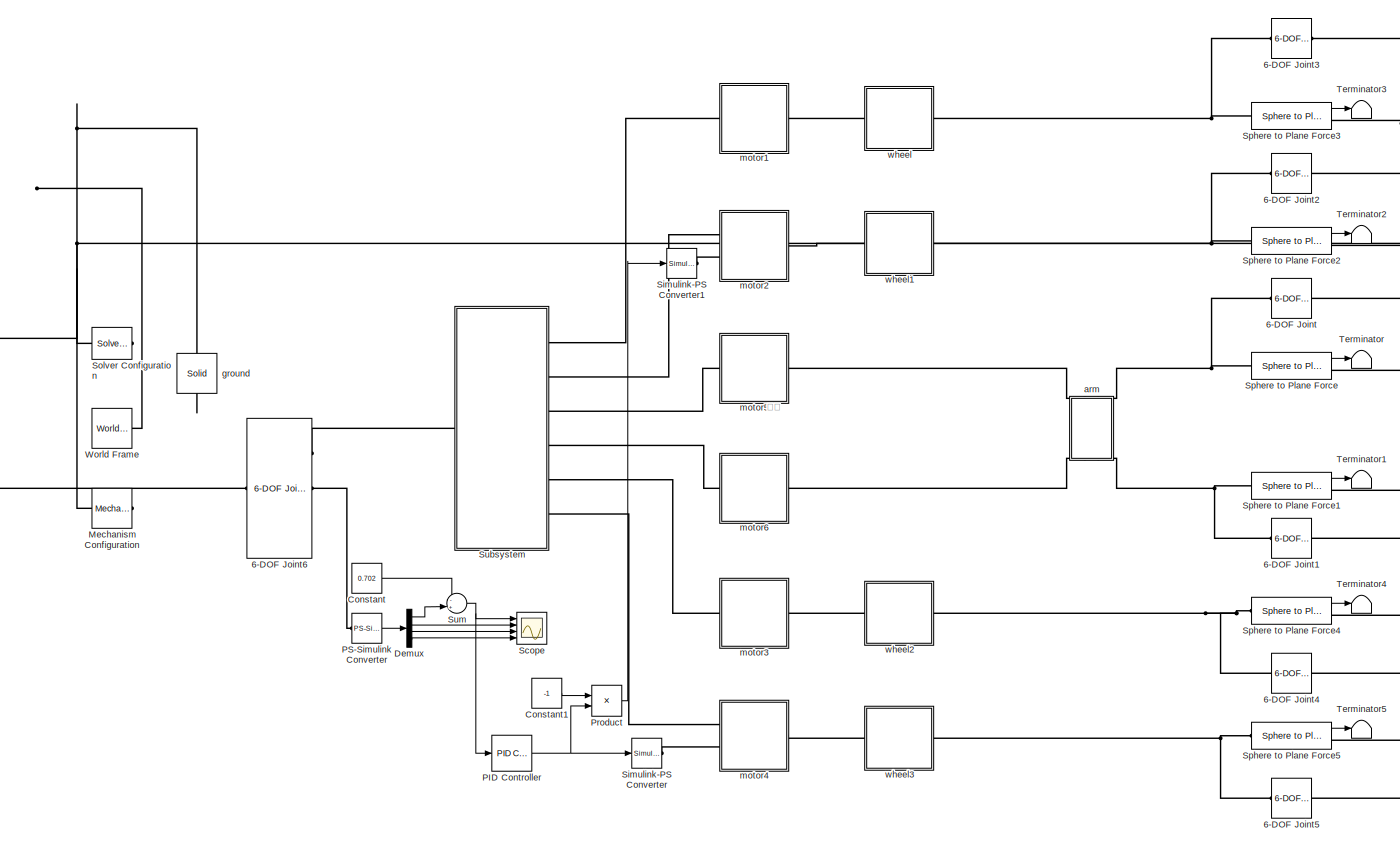
[diagram: root canvas - part 1/1, right side, full height]
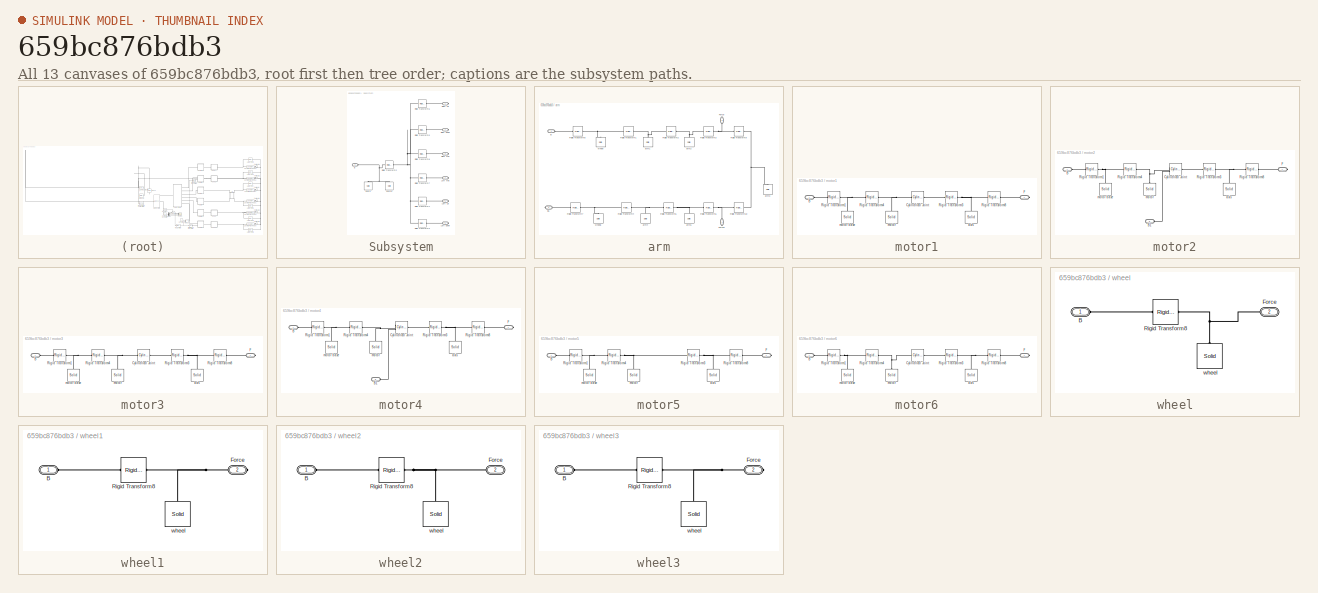
[diagram: thumbnail index - all 13 canvases of the model, root first then tree order]
MODEL slx_659bc876bdb3
KIND model
CONFIG AbsTol = 1e-5
CONFIG EnableMultiTasking = off
CONFIG FixedStep = auto
CONFIG MaxStep = 1e-2
CONFIG MinStep = auto
CONFIG RelTol = 1e-4
CONFIG SampleTimeConstraint = Unconstrained
CONFIG Solver = ode15s
CONFIG SolverName = ode15s
CONFIG StartTime = 0.0
CONFIG StopTime = 3
BLOCK [Reference] 6-DOF Joint  REF=sm_lib/Joints/6-DOF Joint
  Ports = [0, 0, 0, 0, 0, 1, 1]
  SourceBlock = sm_lib/Joints/6-DOF Joint
  SourceType = 6-DOF Joint
BLOCK [Reference] 6-DOF Joint1  REF=sm_lib/Joints/6-DOF Joint
  Ports = [0, 0, 0, 0, 0, 1, 1]
  SourceBlock = sm_lib/Joints/6-DOF Joint
  SourceType = 6-DOF Joint
BLOCK [Reference] 6-DOF Joint2  REF=sm_lib/Joints/6-DOF Joint
  Ports = [0, 0, 0, 0, 0, 1, 1]
  SourceBlock = sm_lib/Joints/6-DOF Joint
  SourceType = 6-DOF Joint
BLOCK [Reference] 6-DOF Joint3  REF=sm_lib/Joints/6-DOF Joint
  Ports = [0, 0, 0, 0, 0, 1, 1]
  SourceBlock = sm_lib/Joints/6-DOF Joint
  SourceType = 6-DOF Joint
BLOCK [Reference] 6-DOF Joint4  REF=sm_lib/Joints/6-DOF Joint
  Ports = [0, 0, 0, 0, 0, 1, 1]
  SourceBlock = sm_lib/Joints/6-DOF Joint
  SourceType = 6-DOF Joint
BLOCK [Reference] 6-DOF Joint5  REF=sm_lib/Joints/6-DOF Joint
  Ports = [0, 0, 0, 0, 0, 1, 1]
  SourceBlock = sm_lib/Joints/6-DOF Joint
  SourceType = 6-DOF Joint
BLOCK [Reference] 6-DOF Joint6  REF=sm_lib/Joints/6-DOF Joint
  Ports = [0, 0, 0, 0, 0, 1, 3]
  SourceBlock = sm_lib/Joints/6-DOF Joint
  SourceType = 6-DOF Joint
BLOCK [Constant] Constant
  Value = 0.702
BLOCK [Constant] Constant1
  Value = -1
BLOCK [Demux] Demux
  DisplayOption = bar
  Ports = [1, 4]
BLOCK [Reference] Mechanism Configuration  REF=sm_lib/Utilities/Mechanism
Configuration
  Ports = [0, 0, 0, 0, 0, 0, 1]
  SourceBlock = sm_lib/Utilities/Mechanism\nConfiguration
  SourceType = Mechanism\nConfiguration
BLOCK [Reference] PID Controller  REF=simulink/Continuous/PID Controller
  Ports = [1, 1]
  SourceBlock = simulink/Continuous/PID Controller
  SourceType = PID 1dof
BLOCK [Reference] PS-Simulink Converter  REF=nesl_utility/PS-Simulink
Converter
  Ports = [0, 1, 0, 0, 0, 1]
  SourceBlock = nesl_utility/PS-Simulink\nConverter
  SourceType = PS-Simulink\nConverter
BLOCK [Product] Product
  InputSameDT = off
  OutDataTypeStr = Inherit: Inherit via internal rule
  Ports = [2, 1]
  RndMeth = Floor
  SaturateOnIntegerOverflow = off
BLOCK [Scope] Scope
  NumInputPorts = 4
  Ports = [4]
  ScopeSpecificationString = Simulink.scopes.TimeScopeBlockCfg('CurrentConfiguration', extmgr.ConfigurationSet(extmgr.Configuration('Core','General UI',true),extmgr.Configuration('Core','Source UI',true),extmgr.Configuration('Sources','WiredSimulink',true),extmgr.Configuration('Visuals','Time Domain',true,'SerializedDisplays',{struct('MinYLimReal','-0.1491','MaxYLimReal','0.0577','YLabelReal','','MinYLimMag','0.00000','MaxYLi...<+3393ch>
BLOCK [Reference] Simulink-PS Converter  REF=nesl_utility/Simulink-PS
Converter
  Ports = [1, 0, 0, 0, 0, 0, 1]
  SourceBlock = nesl_utility/Simulink-PS\nConverter
  SourceType = Simulink-PS\nConverter
BLOCK [Reference] Simulink-PS Converter1  REF=nesl_utility/Simulink-PS
Converter
  Ports = [1, 0, 0, 0, 0, 0, 1]
  SourceBlock = nesl_utility/Simulink-PS\nConverter
  SourceType = Simulink-PS\nConverter
BLOCK [Reference] Solver Configuration  REF=nesl_utility/Solver
Configuration
  Ports = [0, 0, 0, 0, 0, 0, 1]
  SourceBlock = nesl_utility/Solver\nConfiguration
  SourceType = Solver\nConfiguration
BLOCK [Reference] Sphere to Plane Force  REF=Contact_Forces_Lib/3D/Sphere to Plane Force
  Ports = [0, 1, 0, 0, 0, 1, 1]
  SourceBlock = Contact_Forces_Lib/3D/Sphere to Plane Force
  SourceType = Sphere to Plane Force
BLOCK [Reference] Sphere to Plane Force1  REF=Contact_Forces_Lib/3D/Sphere to Plane Force
  Ports = [0, 1, 0, 0, 0, 1, 1]
  SourceBlock = Contact_Forces_Lib/3D/Sphere to Plane Force
  SourceType = Sphere to Plane Force
BLOCK [Reference] Sphere to Plane Force2  REF=Contact_Forces_Lib/3D/Sphere to Plane Force
  Ports = [0, 1, 0, 0, 0, 1, 1]
  SourceBlock = Contact_Forces_Lib/3D/Sphere to Plane Force
  SourceType = Sphere to Plane Force
BLOCK [Reference] Sphere to Plane Force3  REF=Contact_Forces_Lib/3D/Sphere to Plane Force
  Ports = [0, 1, 0, 0, 0, 1, 1]
  SourceBlock = Contact_Forces_Lib/3D/Sphere to Plane Force
  SourceType = Sphere to Plane Force
BLOCK [Reference] Sphere to Plane Force4  REF=Contact_Forces_Lib/3D/Sphere to Plane Force
  Ports = [0, 1, 0, 0, 0, 1, 1]
  SourceBlock = Contact_Forces_Lib/3D/Sphere to Plane Force
  SourceType = Sphere to Plane Force
BLOCK [Reference] Sphere to Plane Force5  REF=Contact_Forces_Lib/3D/Sphere to Plane Force
  Ports = [0, 1, 0, 0, 0, 1, 1]
  SourceBlock = Contact_Forces_Lib/3D/Sphere to Plane Force
  SourceType = Sphere to Plane Force
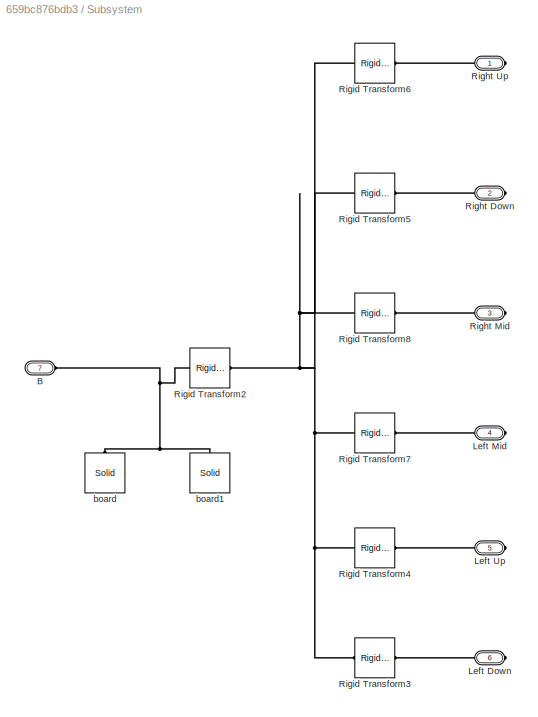
BLOCK [SubSystem] Subsystem
  Ports = [0, 0, 0, 0, 0, 1, 6]
  RequestExecContextInheritance = off
  Variant = off
BLOCK [PMIOPort] Subsystem/B
  Port = 7
  Side = Left
BLOCK [PMIOPort] Subsystem/Left Down
  Port = 6
  Side = Right
BLOCK [PMIOPort] Subsystem/Left Mid
  Port = 4
  Side = Right
BLOCK [PMIOPort] Subsystem/Left Up
  Port = 5
  Side = Right
BLOCK [PMIOPort] Subsystem/Right Down
  Port = 2
  Side = Right
BLOCK [PMIOPort] Subsystem/Right Mid
  Port = 3
  Side = Right
BLOCK [PMIOPort] Subsystem/Right Up
  Port = 1
  Side = Right
BLOCK [Reference] Subsystem/Rigid Transform2  REF=sm_lib/Frames and
Transforms/Rigid
Transform
  Ports = [0, 0, 0, 0, 0, 1, 1]
  SourceBlock = sm_lib/Frames and\nTransforms/Rigid\nTransform
  SourceType = Rigid\nTransform
BLOCK [Reference] Subsystem/Rigid Transform3  REF=sm_lib/Frames and
Transforms/Rigid
Transform
  Ports = [0, 0, 0, 0, 0, 1, 1]
  SourceBlock = sm_lib/Frames and\nTransforms/Rigid\nTransform
  SourceType = Rigid\nTransform
BLOCK [Reference] Subsystem/Rigid Transform4  REF=sm_lib/Frames and
Transforms/Rigid
Transform
  Ports = [0, 0, 0, 0, 0, 1, 1]
  SourceBlock = sm_lib/Frames and\nTransforms/Rigid\nTransform
  SourceType = Rigid\nTransform
BLOCK [Reference] Subsystem/Rigid Transform5  REF=sm_lib/Frames and
Transforms/Rigid
Transform
  Ports = [0, 0, 0, 0, 0, 1, 1]
  SourceBlock = sm_lib/Frames and\nTransforms/Rigid\nTransform
  SourceType = Rigid\nTransform
BLOCK [Reference] Subsystem/Rigid Transform6  REF=sm_lib/Frames and
Transforms/Rigid
Transform
  Ports = [0, 0, 0, 0, 0, 1, 1]
  SourceBlock = sm_lib/Frames and\nTransforms/Rigid\nTransform
  SourceType = Rigid\nTransform
BLOCK [Reference] Subsystem/Rigid Transform7  REF=sm_lib/Frames and
Transforms/Rigid
Transform
  Ports = [0, 0, 0, 0, 0, 1, 1]
  SourceBlock = sm_lib/Frames and\nTransforms/Rigid\nTransform
  SourceType = Rigid\nTransform
BLOCK [Reference] Subsystem/Rigid Transform8  REF=sm_lib/Frames and
Transforms/Rigid
Transform
  Ports = [0, 0, 0, 0, 0, 1, 1]
  SourceBlock = sm_lib/Frames and\nTransforms/Rigid\nTransform
  SourceType = Rigid\nTransform
BLOCK [Reference] Subsystem/board  REF=sm_lib/Body Elements/Solid
  Ports = [0, 0, 0, 0, 0, 0, 1]
  SourceBlock = sm_lib/Body Elements/Solid
  SourceType = Solid
BLOCK [Reference] Subsystem/board1  REF=sm_lib/Body Elements/Solid
  Ports = [0, 0, 0, 0, 0, 0, 1]
  SourceBlock = sm_lib/Body Elements/Solid
  SourceType = Solid
BLOCK [Sum] Sum
  IconShape = round
  InputSameDT = off
  Inputs = -+|
  OutDataTypeStr = Inherit: Inherit via internal rule
  Ports = [2, 1]
  SaturateOnIntegerOverflow = off
BLOCK [Terminator] Terminator
BLOCK [Terminator] Terminator1
BLOCK [Terminator] Terminator2
BLOCK [Terminator] Terminator3
BLOCK [Terminator] Terminator4
BLOCK [Terminator] Terminator5
BLOCK [Reference] World Frame  REF=sm_lib/Frames and
Transforms/World Frame
  Ports = [0, 0, 0, 0, 0, 0, 1]
  SourceBlock = sm_lib/Frames and\nTransforms/World Frame
  SourceType = World Frame
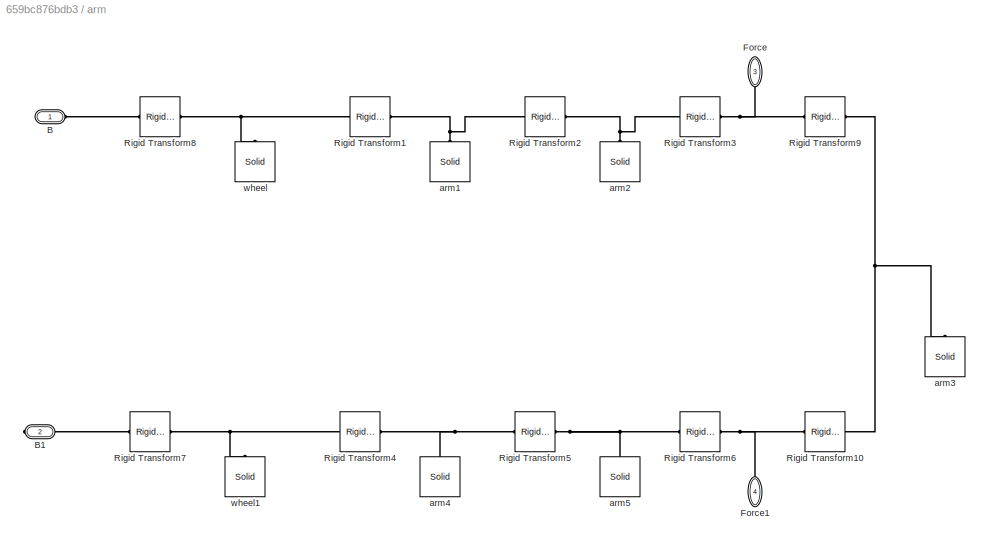
BLOCK [SubSystem] arm
  Ports = [0, 0, 0, 0, 0, 2, 2]
  RequestExecContextInheritance = off
  Variant = off
BLOCK [PMIOPort] arm/B
  Port = 1
  Side = Left
BLOCK [PMIOPort] arm/B1
  Port = 2
  Side = Right
BLOCK [PMIOPort] arm/Force
  Port = 3
  Side = Left
BLOCK [PMIOPort] arm/Force1
  Port = 4
  Side = Right
BLOCK [Reference] arm/Rigid Transform1  REF=sm_lib/Frames and
Transforms/Rigid
Transform
  Ports = [0, 0, 0, 0, 0, 1, 1]
  SourceBlock = sm_lib/Frames and\nTransforms/Rigid\nTransform
  SourceType = Rigid\nTransform
BLOCK [Reference] arm/Rigid Transform10  REF=sm_lib/Frames and
Transforms/Rigid
Transform
  Ports = [0, 0, 0, 0, 0, 1, 1]
  SourceBlock = sm_lib/Frames and\nTransforms/Rigid\nTransform
  SourceType = Rigid\nTransform
BLOCK [Reference] arm/Rigid Transform2  REF=sm_lib/Frames and
Transforms/Rigid
Transform
  Ports = [0, 0, 0, 0, 0, 1, 1]
  SourceBlock = sm_lib/Frames and\nTransforms/Rigid\nTransform
  SourceType = Rigid\nTransform
BLOCK [Reference] arm/Rigid Transform3  REF=sm_lib/Frames and
Transforms/Rigid
Transform
  Ports = [0, 0, 0, 0, 0, 1, 1]
  SourceBlock = sm_lib/Frames and\nTransforms/Rigid\nTransform
  SourceType = Rigid\nTransform
BLOCK [Reference] arm/Rigid Transform4  REF=sm_lib/Frames and
Transforms/Rigid
Transform
  Ports = [0, 0, 0, 0, 0, 1, 1]
  SourceBlock = sm_lib/Frames and\nTransforms/Rigid\nTransform
  SourceType = Rigid\nTransform
BLOCK [Reference] arm/Rigid Transform5  REF=sm_lib/Frames and
Transforms/Rigid
Transform
  Ports = [0, 0, 0, 0, 0, 1, 1]
  SourceBlock = sm_lib/Frames and\nTransforms/Rigid\nTransform
  SourceType = Rigid\nTransform
BLOCK [Reference] arm/Rigid Transform6  REF=sm_lib/Frames and
Transforms/Rigid
Transform
  Ports = [0, 0, 0, 0, 0, 1, 1]
  SourceBlock = sm_lib/Frames and\nTransforms/Rigid\nTransform
  SourceType = Rigid\nTransform
BLOCK [Reference] arm/Rigid Transform7  REF=sm_lib/Frames and
Transforms/Rigid
Transform
  Ports = [0, 0, 0, 0, 0, 1, 1]
  SourceBlock = sm_lib/Frames and\nTransforms/Rigid\nTransform
  SourceType = Rigid\nTransform
BLOCK [Reference] arm/Rigid Transform8  REF=sm_lib/Frames and
Transforms/Rigid
Transform
  Ports = [0, 0, 0, 0, 0, 1, 1]
  SourceBlock = sm_lib/Frames and\nTransforms/Rigid\nTransform
  SourceType = Rigid\nTransform
BLOCK [Reference] arm/Rigid Transform9  REF=sm_lib/Frames and
Transforms/Rigid
Transform
  Ports = [0, 0, 0, 0, 0, 1, 1]
  SourceBlock = sm_lib/Frames and\nTransforms/Rigid\nTransform
  SourceType = Rigid\nTransform
BLOCK [Reference] arm/arm1  REF=sm_lib/Body Elements/Solid
  Ports = [0, 0, 0, 0, 0, 0, 1]
  SourceBlock = sm_lib/Body Elements/Solid
  SourceType = Solid
BLOCK [Reference] arm/arm2  REF=sm_lib/Body Elements/Solid
  Ports = [0, 0, 0, 0, 0, 0, 1]
  SourceBlock = sm_lib/Body Elements/Solid
  SourceType = Solid
BLOCK [Reference] arm/arm3  REF=sm_lib/Body Elements/Solid
  Ports = [0, 0, 0, 0, 0, 0, 1]
  SourceBlock = sm_lib/Body Elements/Solid
  SourceType = Solid
BLOCK [Reference] arm/arm4  REF=sm_lib/Body Elements/Solid
  Ports = [0, 0, 0, 0, 0, 0, 1]
  SourceBlock = sm_lib/Body Elements/Solid
  SourceType = Solid
BLOCK [Reference] arm/arm5  REF=sm_lib/Body Elements/Solid
  Ports = [0, 0, 0, 0, 0, 0, 1]
  SourceBlock = sm_lib/Body Elements/Solid
  SourceType = Solid
BLOCK [Reference] arm/wheel  REF=sm_lib/Body Elements/Solid
  Ports = [0, 0, 0, 0, 0, 0, 1]
  SourceBlock = sm_lib/Body Elements/Solid
  SourceType = Solid
BLOCK [Reference] arm/wheel1  REF=sm_lib/Body Elements/Solid
  Ports = [0, 0, 0, 0, 0, 0, 1]
  SourceBlock = sm_lib/Body Elements/Solid
  SourceType = Solid
BLOCK [Reference] ground  REF=sm_lib/Body Elements/Solid
  Ports = [0, 0, 0, 0, 0, 0, 1]
  SourceBlock = sm_lib/Body Elements/Solid
  SourceType = Solid
BLOCK [SubSystem] motor1
  Ports = [0, 0, 0, 0, 0, 1, 1]
  RequestExecContextInheritance = off
  Variant = off
  VariantControl = Variant1
BLOCK [PMIOPort] motor1/B
  Port = 1
  Side = Left
BLOCK [Reference] motor1/Cylindrical Joint  REF=sm_lib/Joints/Cylindrical
Joint
  Ports = [0, 0, 0, 0, 0, 1, 1]
  SourceBlock = sm_lib/Joints/Cylindrical\nJoint
  SourceType = Cylindrical\nJoint
BLOCK [PMIOPort] motor1/F
  Port = 2
  Side = Right
BLOCK [Reference] motor1/Rigid Transform1  REF=sm_lib/Frames and
Transforms/Rigid
Transform
  Ports = [0, 0, 0, 0, 0, 1, 1]
  SourceBlock = sm_lib/Frames and\nTransforms/Rigid\nTransform
  SourceType = Rigid\nTransform
BLOCK [Reference] motor1/Rigid Transform3  REF=sm_lib/Frames and
Transforms/Rigid
Transform
  Ports = [0, 0, 0, 0, 0, 1, 1]
  SourceBlock = sm_lib/Frames and\nTransforms/Rigid\nTransform
  SourceType = Rigid\nTransform
BLOCK [Reference] motor1/Rigid Transform4  REF=sm_lib/Frames and
Transforms/Rigid
Transform
  Ports = [0, 0, 0, 0, 0, 1, 1]
  SourceBlock = sm_lib/Frames and\nTransforms/Rigid\nTransform
  SourceType = Rigid\nTransform
BLOCK [Reference] motor1/Rigid Transform8  REF=sm_lib/Frames and
Transforms/Rigid
Transform
  Ports = [0, 0, 0, 0, 0, 1, 1]
  SourceBlock = sm_lib/Frames and\nTransforms/Rigid\nTransform
  SourceType = Rigid\nTransform
BLOCK [Reference] motor1/axis  REF=sm_lib/Body Elements/Solid
  Ports = [0, 0, 0, 0, 0, 0, 1]
  SourceBlock = sm_lib/Body Elements/Solid
  SourceType = Solid
BLOCK [Reference] motor1/motor  REF=sm_lib/Body Elements/Solid
  Ports = [0, 0, 0, 0, 0, 0, 1]
  SourceBlock = sm_lib/Body Elements/Solid
  SourceType = Solid
BLOCK [Reference] motor1/motor base  REF=sm_lib/Body Elements/Solid
  Ports = [0, 0, 0, 0, 0, 0, 1]
  SourceBlock = sm_lib/Body Elements/Solid
  SourceType = Solid
BLOCK [SubSystem] motor2
  Ports = [0, 0, 0, 0, 0, 2, 1]
  RequestExecContextInheritance = off
  Variant = off
  VariantControl = Variant1
BLOCK [PMIOPort] motor2/B
  Port = 1
  Side = Left
BLOCK [PMIOPort] motor2/B1
  Port = 3
  Side = Left
BLOCK [Reference] motor2/Cylindrical Joint  REF=sm_lib/Joints/Cylindrical
Joint
  Ports = [0, 0, 0, 0, 0, 2, 1]
  SourceBlock = sm_lib/Joints/Cylindrical\nJoint
  SourceType = Cylindrical\nJoint
BLOCK [PMIOPort] motor2/F
  Port = 2
  Side = Right
BLOCK [Reference] motor2/Rigid Transform1  REF=sm_lib/Frames and
Transforms/Rigid
Transform
  Ports = [0, 0, 0, 0, 0, 1, 1]
  SourceBlock = sm_lib/Frames and\nTransforms/Rigid\nTransform
  SourceType = Rigid\nTransform
BLOCK [Reference] motor2/Rigid Transform3  REF=sm_lib/Frames and
Transforms/Rigid
Transform
  Ports = [0, 0, 0, 0, 0, 1, 1]
  SourceBlock = sm_lib/Frames and\nTransforms/Rigid\nTransform
  SourceType = Rigid\nTransform
BLOCK [Reference] motor2/Rigid Transform4  REF=sm_lib/Frames and
Transforms/Rigid
Transform
  Ports = [0, 0, 0, 0, 0, 1, 1]
  SourceBlock = sm_lib/Frames and\nTransforms/Rigid\nTransform
  SourceType = Rigid\nTransform
BLOCK [Reference] motor2/Rigid Transform8  REF=sm_lib/Frames and
Transforms/Rigid
Transform
  Ports = [0, 0, 0, 0, 0, 1, 1]
  SourceBlock = sm_lib/Frames and\nTransforms/Rigid\nTransform
  SourceType = Rigid\nTransform
BLOCK [Reference] motor2/axis  REF=sm_lib/Body Elements/Solid
  Ports = [0, 0, 0, 0, 0, 0, 1]
  SourceBlock = sm_lib/Body Elements/Solid
  SourceType = Solid
BLOCK [Reference] motor2/motor  REF=sm_lib/Body Elements/Solid
  Ports = [0, 0, 0, 0, 0, 0, 1]
  SourceBlock = sm_lib/Body Elements/Solid
  SourceType = Solid
BLOCK [Reference] motor2/motor base  REF=sm_lib/Body Elements/Solid
  Ports = [0, 0, 0, 0, 0, 0, 1]
  SourceBlock = sm_lib/Body Elements/Solid
  SourceType = Solid
BLOCK [SubSystem] motor3
  Ports = [0, 0, 0, 0, 0, 1, 1]
  RequestExecContextInheritance = off
  Variant = off
  VariantControl = Variant1
BLOCK [PMIOPort] motor3/B
  Port = 1
  Side = Left
BLOCK [Reference] motor3/Cylindrical Joint  REF=sm_lib/Joints/Cylindrical
Joint
  Ports = [0, 0, 0, 0, 0, 1, 1]
  SourceBlock = sm_lib/Joints/Cylindrical\nJoint
  SourceType = Cylindrical\nJoint
BLOCK [PMIOPort] motor3/F
  Port = 2
  Side = Right
BLOCK [Reference] motor3/Rigid Transform1  REF=sm_lib/Frames and
Transforms/Rigid
Transform
  Ports = [0, 0, 0, 0, 0, 1, 1]
  SourceBlock = sm_lib/Frames and\nTransforms/Rigid\nTransform
  SourceType = Rigid\nTransform
BLOCK [Reference] motor3/Rigid Transform3  REF=sm_lib/Frames and
Transforms/Rigid
Transform
  Ports = [0, 0, 0, 0, 0, 1, 1]
  SourceBlock = sm_lib/Frames and\nTransforms/Rigid\nTransform
  SourceType = Rigid\nTransform
BLOCK [Reference] motor3/Rigid Transform4  REF=sm_lib/Frames and
Transforms/Rigid
Transform
  Ports = [0, 0, 0, 0, 0, 1, 1]
  SourceBlock = sm_lib/Frames and\nTransforms/Rigid\nTransform
  SourceType = Rigid\nTransform
BLOCK [Reference] motor3/Rigid Transform8  REF=sm_lib/Frames and
Transforms/Rigid
Transform
  Ports = [0, 0, 0, 0, 0, 1, 1]
  SourceBlock = sm_lib/Frames and\nTransforms/Rigid\nTransform
  SourceType = Rigid\nTransform
BLOCK [Reference] motor3/axis  REF=sm_lib/Body Elements/Solid
  Ports = [0, 0, 0, 0, 0, 0, 1]
  SourceBlock = sm_lib/Body Elements/Solid
  SourceType = Solid
BLOCK [Reference] motor3/motor  REF=sm_lib/Body Elements/Solid
  Ports = [0, 0, 0, 0, 0, 0, 1]
  SourceBlock = sm_lib/Body Elements/Solid
  SourceType = Solid
BLOCK [Reference] motor3/motor base  REF=sm_lib/Body Elements/Solid
  Ports = [0, 0, 0, 0, 0, 0, 1]
  SourceBlock = sm_lib/Body Elements/Solid
  SourceType = Solid
BLOCK [SubSystem] motor4
  Ports = [0, 0, 0, 0, 0, 2, 1]
  RequestExecContextInheritance = off
  Variant = off
  VariantControl = Variant1
BLOCK [PMIOPort] motor4/B
  Port = 1
  Side = Left
BLOCK [PMIOPort] motor4/B1
  Port = 3
  Side = Left
BLOCK [Reference] motor4/Cylindrical Joint  REF=sm_lib/Joints/Cylindrical
Joint
  Ports = [0, 0, 0, 0, 0, 2, 1]
  SourceBlock = sm_lib/Joints/Cylindrical\nJoint
  SourceType = Cylindrical\nJoint
BLOCK [PMIOPort] motor4/F
  Port = 2
  Side = Right
BLOCK [Reference] motor4/Rigid Transform1  REF=sm_lib/Frames and
Transforms/Rigid
Transform
  Ports = [0, 0, 0, 0, 0, 1, 1]
  SourceBlock = sm_lib/Frames and\nTransforms/Rigid\nTransform
  SourceType = Rigid\nTransform
BLOCK [Reference] motor4/Rigid Transform3  REF=sm_lib/Frames and
Transforms/Rigid
Transform
  Ports = [0, 0, 0, 0, 0, 1, 1]
  SourceBlock = sm_lib/Frames and\nTransforms/Rigid\nTransform
  SourceType = Rigid\nTransform
BLOCK [Reference] motor4/Rigid Transform4  REF=sm_lib/Frames and
Transforms/Rigid
Transform
  Ports = [0, 0, 0, 0, 0, 1, 1]
  SourceBlock = sm_lib/Frames and\nTransforms/Rigid\nTransform
  SourceType = Rigid\nTransform
BLOCK [Reference] motor4/Rigid Transform8  REF=sm_lib/Frames and
Transforms/Rigid
Transform
  Ports = [0, 0, 0, 0, 0, 1, 1]
  SourceBlock = sm_lib/Frames and\nTransforms/Rigid\nTransform
  SourceType = Rigid\nTransform
BLOCK [Reference] motor4/axis  REF=sm_lib/Body Elements/Solid
  Ports = [0, 0, 0, 0, 0, 0, 1]
  SourceBlock = sm_lib/Body Elements/Solid
  SourceType = Solid
BLOCK [Reference] motor4/motor  REF=sm_lib/Body Elements/Solid
  Ports = [0, 0, 0, 0, 0, 0, 1]
  SourceBlock = sm_lib/Body Elements/Solid
  SourceType = Solid
BLOCK [Reference] motor4/motor base  REF=sm_lib/Body Elements/Solid
  Ports = [0, 0, 0, 0, 0, 0, 1]
  SourceBlock = sm_lib/Body Elements/Solid
  SourceType = Solid
BLOCK [SubSystem] motor5
  Ports = [0, 0, 0, 0, 0, 1, 1]
  RequestExecContextInheritance = off
  Variant = off
  VariantControl = Variant1
BLOCK [PMIOPort] motor5/B
  Port = 1
  Side = Left
BLOCK [PMIOPort] motor5/F
  Port = 2
  Side = Right
BLOCK [Reference] motor5/Rigid Transform1  REF=sm_lib/Frames and
Transforms/Rigid
Transform
  Ports = [0, 0, 0, 0, 0, 1, 1]
  SourceBlock = sm_lib/Frames and\nTransforms/Rigid\nTransform
  SourceType = Rigid\nTransform
BLOCK [Reference] motor5/Rigid Transform3  REF=sm_lib/Frames and
Transforms/Rigid
Transform
  Ports = [0, 0, 0, 0, 0, 1, 1]
  SourceBlock = sm_lib/Frames and\nTransforms/Rigid\nTransform
  SourceType = Rigid\nTransform
BLOCK [Reference] motor5/Rigid Transform4  REF=sm_lib/Frames and
Transforms/Rigid
Transform
  Ports = [0, 0, 0, 0, 0, 1, 1]
  SourceBlock = sm_lib/Frames and\nTransforms/Rigid\nTransform
  SourceType = Rigid\nTransform
BLOCK [Reference] motor5/Rigid Transform8  REF=sm_lib/Frames and
Transforms/Rigid
Transform
  Ports = [0, 0, 0, 0, 0, 1, 1]
  SourceBlock = sm_lib/Frames and\nTransforms/Rigid\nTransform
  SourceType = Rigid\nTransform
BLOCK [Reference] motor5/axis  REF=sm_lib/Body Elements/Solid
  Ports = [0, 0, 0, 0, 0, 0, 1]
  SourceBlock = sm_lib/Body Elements/Solid
  SourceType = Solid
BLOCK [Reference] motor5/motor  REF=sm_lib/Body Elements/Solid
  Ports = [0, 0, 0, 0, 0, 0, 1]
  SourceBlock = sm_lib/Body Elements/Solid
  SourceType = Solid
BLOCK [Reference] motor5/motor base  REF=sm_lib/Body Elements/Solid
  Ports = [0, 0, 0, 0, 0, 0, 1]
  SourceBlock = sm_lib/Body Elements/Solid
  SourceType = Solid
BLOCK [SubSystem] motor6
  Ports = [0, 0, 0, 0, 0, 1, 1]
  RequestExecContextInheritance = off
  Variant = off
  VariantControl = Variant1
BLOCK [PMIOPort] motor6/B
  Port = 1
  Side = Left
BLOCK [Reference] motor6/Cylindrical Joint  REF=sm_lib/Joints/Cylindrical
Joint
  Ports = [0, 0, 0, 0, 0, 1, 1]
  SourceBlock = sm_lib/Joints/Cylindrical\nJoint
  SourceType = Cylindrical\nJoint
BLOCK [PMIOPort] motor6/F
  Port = 2
  Side = Right
BLOCK [Reference] motor6/Rigid Transform1  REF=sm_lib/Frames and
Transforms/Rigid
Transform
  Ports = [0, 0, 0, 0, 0, 1, 1]
  SourceBlock = sm_lib/Frames and\nTransforms/Rigid\nTransform
  SourceType = Rigid\nTransform
BLOCK [Reference] motor6/Rigid Transform3  REF=sm_lib/Frames and
Transforms/Rigid
Transform
  Ports = [0, 0, 0, 0, 0, 1, 1]
  SourceBlock = sm_lib/Frames and\nTransforms/Rigid\nTransform
  SourceType = Rigid\nTransform
BLOCK [Reference] motor6/Rigid Transform4  REF=sm_lib/Frames and
Transforms/Rigid
Transform
  Ports = [0, 0, 0, 0, 0, 1, 1]
  SourceBlock = sm_lib/Frames and\nTransforms/Rigid\nTransform
  SourceType = Rigid\nTransform
BLOCK [Reference] motor6/Rigid Transform8  REF=sm_lib/Frames and
Transforms/Rigid
Transform
  Ports = [0, 0, 0, 0, 0, 1, 1]
  SourceBlock = sm_lib/Frames and\nTransforms/Rigid\nTransform
  SourceType = Rigid\nTransform
BLOCK [Reference] motor6/axis  REF=sm_lib/Body Elements/Solid
  Ports = [0, 0, 0, 0, 0, 0, 1]
  SourceBlock = sm_lib/Body Elements/Solid
  SourceType = Solid
BLOCK [Reference] motor6/motor  REF=sm_lib/Body Elements/Solid
  Ports = [0, 0, 0, 0, 0, 0, 1]
  SourceBlock = sm_lib/Body Elements/Solid
  SourceType = Solid
BLOCK [Reference] motor6/motor base  REF=sm_lib/Body Elements/Solid
  Ports = [0, 0, 0, 0, 0, 0, 1]
  SourceBlock = sm_lib/Body Elements/Solid
  SourceType = Solid
BLOCK [SubSystem] wheel
  Ports = [0, 0, 0, 0, 0, 1, 1]
  RequestExecContextInheritance = off
  Variant = off
BLOCK [PMIOPort] wheel/B
  Port = 1
  Side = Left
BLOCK [PMIOPort] wheel/Force
  Port = 2
  Side = Right
BLOCK [Reference] wheel/Rigid Transform8  REF=sm_lib/Frames and
Transforms/Rigid
Transform
  Ports = [0, 0, 0, 0, 0, 1, 1]
  SourceBlock = sm_lib/Frames and\nTransforms/Rigid\nTransform
  SourceType = Rigid\nTransform
BLOCK [Reference] wheel/wheel  REF=sm_lib/Body Elements/Solid
  Ports = [0, 0, 0, 0, 0, 0, 1]
  SourceBlock = sm_lib/Body Elements/Solid
  SourceType = Solid
BLOCK [SubSystem] wheel1
  Ports = [0, 0, 0, 0, 0, 1, 1]
  RequestExecContextInheritance = off
  Variant = off
BLOCK [PMIOPort] wheel1/B
  Port = 1
  Side = Left
BLOCK [PMIOPort] wheel1/Force
  Port = 2
  Side = Right
BLOCK [Reference] wheel1/Rigid Transform8  REF=sm_lib/Frames and
Transforms/Rigid
Transform
  Ports = [0, 0, 0, 0, 0, 1, 1]
  SourceBlock = sm_lib/Frames and\nTransforms/Rigid\nTransform
  SourceType = Rigid\nTransform
BLOCK [Reference] wheel1/wheel  REF=sm_lib/Body Elements/Solid
  Ports = [0, 0, 0, 0, 0, 0, 1]
  SourceBlock = sm_lib/Body Elements/Solid
  SourceType = Solid
BLOCK [SubSystem] wheel2
  Ports = [0, 0, 0, 0, 0, 1, 1]
  RequestExecContextInheritance = off
  Variant = off
BLOCK [PMIOPort] wheel2/B
  Port = 1
  Side = Left
BLOCK [PMIOPort] wheel2/Force
  Port = 2
  Side = Right
BLOCK [Reference] wheel2/Rigid Transform8  REF=sm_lib/Frames and
Transforms/Rigid
Transform
  Ports = [0, 0, 0, 0, 0, 1, 1]
  SourceBlock = sm_lib/Frames and\nTransforms/Rigid\nTransform
  SourceType = Rigid\nTransform
BLOCK [Reference] wheel2/wheel  REF=sm_lib/Body Elements/Solid
  Ports = [0, 0, 0, 0, 0, 0, 1]
  SourceBlock = sm_lib/Body Elements/Solid
  SourceType = Solid
BLOCK [SubSystem] wheel3
  Ports = [0, 0, 0, 0, 0, 1, 1]
  RequestExecContextInheritance = off
  Variant = off
BLOCK [PMIOPort] wheel3/B
  Port = 1
  Side = Left
BLOCK [PMIOPort] wheel3/Force
  Port = 2
  Side = Right
BLOCK [Reference] wheel3/Rigid Transform8  REF=sm_lib/Frames and
Transforms/Rigid
Transform
  Ports = [0, 0, 0, 0, 0, 1, 1]
  SourceBlock = sm_lib/Frames and\nTransforms/Rigid\nTransform
  SourceType = Rigid\nTransform
BLOCK [Reference] wheel3/wheel  REF=sm_lib/Body Elements/Solid
  Ports = [0, 0, 0, 0, 0, 0, 1]
  SourceBlock = sm_lib/Body Elements/Solid
  SourceType = Solid
ANNOTATION (root): 抱死
LINE Constant1:1 -> Product:1
LINE Constant:1 -> Sum:1
LINE Demux:1 -> Sum:2
LINE Demux:2 -> Scope:2
LINE Demux:3 -> Scope:3
LINE Demux:4 -> Scope:4
NET PID Controller:1 -> Product:2, Simulink-PS Converter:1
LINE PS-Simulink Converter:1 -> Demux:1
LINE Product:1 -> Simulink-PS Converter1:1
LINE Sphere to Plane Force1:1 -> Terminator1:1
LINE Sphere to Plane Force2:1 -> Terminator2:1
LINE Sphere to Plane Force3:1 -> Terminator3:1
LINE Sphere to Plane Force4:1 -> Terminator4:1
LINE Sphere to Plane Force5:1 -> Terminator5:1
LINE Sphere to Plane Force:1 -> Terminator:1
NET Sum:1 -> PID Controller:1, Scope:1
PNET net1: 6-DOF Joint1:LConn1 -- Sphere to Plane Force1:LConn1 -- arm:RConn2
PNET net2: 6-DOF Joint1:RConn1 -- 6-DOF Joint2:RConn1 -- 6-DOF Joint3:RConn1 -- 6-DOF Joint4:RConn1 -- 6-DOF Joint5:RConn1 -- 6-DOF Joint6:LConn1 -- 6-DOF Joint:RConn1 -- Mechanism Configuration:RConn1 -- Solver Configuration:RConn1 -- Sphere to Plane Force1:RConn1 -- Sphere to Plane Force2:RConn1 -- Sphere to Plane Force3:RConn1 -- Sphere to Plane Force4:RConn1 -- Sphere to Plane Force5:RConn1 -- Sphere to Plane Force:RConn1 -- World Frame:RConn1 -- ground:RConn1
PNET net3: 6-DOF Joint2:LConn1 -- Sphere to Plane Force2:LConn1 -- wheel1:RConn1
PNET net4: 6-DOF Joint3:LConn1 -- Sphere to Plane Force3:LConn1 -- wheel:RConn1
PNET net5: 6-DOF Joint4:LConn1 -- Sphere to Plane Force4:LConn1 -- wheel2:RConn1
PNET net6: 6-DOF Joint5:LConn1 -- Sphere to Plane Force5:LConn1 -- wheel3:RConn1
PLINE 6-DOF Joint6:RConn1 -- Subsystem:LConn1
PLINE 6-DOF Joint6:RConn2 -- PS-Simulink Converter:LConn1
PNET net7: 6-DOF Joint:LConn1 -- Sphere to Plane Force:LConn1 -- arm:LConn2
PLINE Simulink-PS Converter1:RConn1 -- motor2:LConn2
PLINE Simulink-PS Converter:RConn1 -- motor4:LConn2
PNET net8: Subsystem/B:RConn1 -- Subsystem/Rigid Transform2:LConn1 -- Subsystem/board1:RConn1 -- Subsystem/board:RConn1
PLINE Subsystem/Left Down:RConn1 -- Subsystem/Rigid Transform3:RConn1
PLINE Subsystem/Left Mid:RConn1 -- Subsystem/Rigid Transform7:RConn1
PLINE Subsystem/Left Up:RConn1 -- Subsystem/Rigid Transform4:RConn1
PLINE Subsystem/Right Down:RConn1 -- Subsystem/Rigid Transform5:RConn1
PLINE Subsystem/Right Mid:RConn1 -- Subsystem/Rigid Transform8:RConn1
PLINE Subsystem/Right Up:RConn1 -- Subsystem/Rigid Transform6:RConn1
PNET net9: Subsystem/Rigid Transform2:RConn1 -- Subsystem/Rigid Transform3:LConn1 -- Subsystem/Rigid Transform4:LConn1 -- Subsystem/Rigid Transform5:LConn1 -- Subsystem/Rigid Transform6:LConn1 -- Subsystem/Rigid Transform7:LConn1 -- Subsystem/Rigid Transform8:LConn1
PLINE Subsystem:RConn1 -- motor1:LConn1
PLINE Subsystem:RConn2 -- motor2:LConn1
PLINE Subsystem:RConn3 -- motor5:LConn1
PLINE Subsystem:RConn4 -- motor6:LConn1
PLINE Subsystem:RConn5 -- motor3:LConn1
PLINE Subsystem:RConn6 -- motor4:LConn1
PLINE arm/B1:RConn1 -- arm/Rigid Transform7:LConn1
PLINE arm/B:RConn1 -- arm/Rigid Transform8:LConn1
PNET net10: arm/Force1:RConn1 -- arm/Rigid Transform10:LConn1 -- arm/Rigid Transform6:RConn1
PNET net11: arm/Force:RConn1 -- arm/Rigid Transform3:RConn1 -- arm/Rigid Transform9:LConn1
PNET net12: arm/Rigid Transform10:RConn1 -- arm/Rigid Transform9:RConn1 -- arm/arm3:RConn1
PNET net13: arm/Rigid Transform1:LConn1 -- arm/Rigid Transform8:RConn1 -- arm/wheel:RConn1
PNET net14: arm/Rigid Transform1:RConn1 -- arm/Rigid Transform2:LConn1 -- arm/arm1:RConn1
PNET net15: arm/Rigid Transform2:RConn1 -- arm/Rigid Transform3:LConn1 -- arm/arm2:RConn1
PNET net16: arm/Rigid Transform4:LConn1 -- arm/Rigid Transform7:RConn1 -- arm/wheel1:RConn1
PNET net17: arm/Rigid Transform4:RConn1 -- arm/Rigid Transform5:LConn1 -- arm/arm4:RConn1
PNET net18: arm/Rigid Transform5:RConn1 -- arm/Rigid Transform6:LConn1 -- arm/arm5:RConn1
PLINE arm:LConn1 -- motor5:RConn1
PLINE arm:RConn1 -- motor6:RConn1
PLINE motor1/B:RConn1 -- motor1/Rigid Transform1:LConn1
PNET net19: motor1/Cylindrical Joint:LConn1 -- motor1/Rigid Transform4:RConn1 -- motor1/motor:RConn1
PLINE motor1/Cylindrical Joint:RConn1 -- motor1/Rigid Transform3:LConn1
PLINE motor1/F:RConn1 -- motor1/Rigid Transform8:RConn1
PNET net20: motor1/Rigid Transform1:RConn1 -- motor1/Rigid Transform4:LConn1 -- motor1/motor base:RConn1
PNET net21: motor1/Rigid Transform3:RConn1 -- motor1/Rigid Transform8:LConn1 -- motor1/axis:RConn1
PLINE motor1:RConn1 -- wheel:LConn1
PLINE motor2/B1:RConn1 -- motor2/Cylindrical Joint:LConn2
PLINE motor2/B:RConn1 -- motor2/Rigid Transform1:LConn1
PNET net22: motor2/Cylindrical Joint:LConn1 -- motor2/Rigid Transform4:RConn1 -- motor2/motor:RConn1
PLINE motor2/Cylindrical Joint:RConn1 -- motor2/Rigid Transform3:LConn1
PLINE motor2/F:RConn1 -- motor2/Rigid Transform8:RConn1
PNET net23: motor2/Rigid Transform1:RConn1 -- motor2/Rigid Transform4:LConn1 -- motor2/motor base:RConn1
PNET net24: motor2/Rigid Transform3:RConn1 -- motor2/Rigid Transform8:LConn1 -- motor2/axis:RConn1
PLINE motor2:RConn1 -- wheel1:LConn1
PLINE motor3/B:RConn1 -- motor3/Rigid Transform1:LConn1
PNET net25: motor3/Cylindrical Joint:LConn1 -- motor3/Rigid Transform4:RConn1 -- motor3/motor:RConn1
PLINE motor3/Cylindrical Joint:RConn1 -- motor3/Rigid Transform3:LConn1
PLINE motor3/F:RConn1 -- motor3/Rigid Transform8:RConn1
PNET net26: motor3/Rigid Transform1:RConn1 -- motor3/Rigid Transform4:LConn1 -- motor3/motor base:RConn1
PNET net27: motor3/Rigid Transform3:RConn1 -- motor3/Rigid Transform8:LConn1 -- motor3/axis:RConn1
PLINE motor3:RConn1 -- wheel2:LConn1
PLINE motor4/B1:RConn1 -- motor4/Cylindrical Joint:LConn2
PLINE motor4/B:RConn1 -- motor4/Rigid Transform1:LConn1
PNET net28: motor4/Cylindrical Joint:LConn1 -- motor4/Rigid Transform4:RConn1 -- motor4/motor:RConn1
PLINE motor4/Cylindrical Joint:RConn1 -- motor4/Rigid Transform3:LConn1
PLINE motor4/F:RConn1 -- motor4/Rigid Transform8:RConn1
PNET net29: motor4/Rigid Transform1:RConn1 -- motor4/Rigid Transform4:LConn1 -- motor4/motor base:RConn1
PNET net30: motor4/Rigid Transform3:RConn1 -- motor4/Rigid Transform8:LConn1 -- motor4/axis:RConn1
PLINE motor4:RConn1 -- wheel3:LConn1
PLINE motor5/B:RConn1 -- motor5/Rigid Transform1:LConn1
PLINE motor5/F:RConn1 -- motor5/Rigid Transform8:RConn1
PNET net31: motor5/Rigid Transform1:RConn1 -- motor5/Rigid Transform4:LConn1 -- motor5/motor base:RConn1
PNET net32: motor5/Rigid Transform3:LConn1 -- motor5/Rigid Transform4:RConn1 -- motor5/motor:RConn1
PNET net33: motor5/Rigid Transform3:RConn1 -- motor5/Rigid Transform8:LConn1 -- motor5/axis:RConn1
PLINE motor6/B:RConn1 -- motor6/Rigid Transform1:LConn1
PNET net34: motor6/Cylindrical Joint:LConn1 -- motor6/Rigid Transform4:RConn1 -- motor6/motor:RConn1
PLINE motor6/Cylindrical Joint:RConn1 -- motor6/Rigid Transform3:LConn1
PLINE motor6/F:RConn1 -- motor6/Rigid Transform8:RConn1
PNET net35: motor6/Rigid Transform1:RConn1 -- motor6/Rigid Transform4:LConn1 -- motor6/motor base:RConn1
PNET net36: motor6/Rigid Transform3:RConn1 -- motor6/Rigid Transform8:LConn1 -- motor6/axis:RConn1
PLINE wheel/B:RConn1 -- wheel/Rigid Transform8:LConn1
PNET net37: wheel/Force:RConn1 -- wheel/Rigid Transform8:RConn1 -- wheel/wheel:RConn1
PLINE wheel1/B:RConn1 -- wheel1/Rigid Transform8:LConn1
PNET net38: wheel1/Force:RConn1 -- wheel1/Rigid Transform8:RConn1 -- wheel1/wheel:RConn1
PLINE wheel2/B:RConn1 -- wheel2/Rigid Transform8:LConn1
PNET net39: wheel2/Force:RConn1 -- wheel2/Rigid Transform8:RConn1 -- wheel2/wheel:RConn1
PLINE wheel3/B:RConn1 -- wheel3/Rigid Transform8:LConn1
PNET net40: wheel3/Force:RConn1 -- wheel3/Rigid Transform8:RConn1 -- wheel3/wheel:RConn1
note: NET lines group one-source signal fan-out (src -> all destinations, sorted); 1:1 wires keep LINE; PNET lines group multi-terminal physical nets as a canonical sorted terminal list (undirected conserving connections); 2-terminal nets keep the pairwise PLINE form
